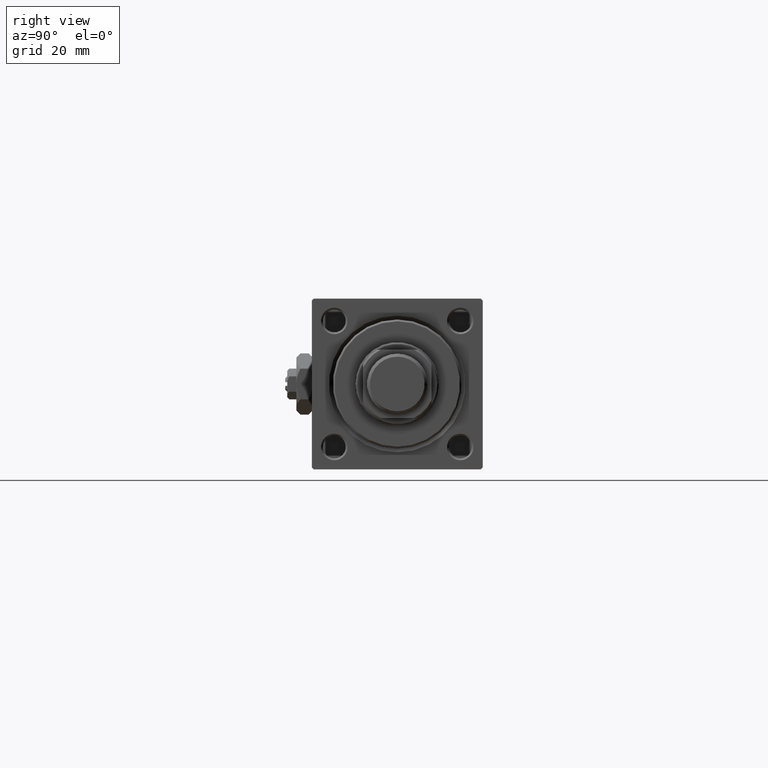
[diagram: clean part render]
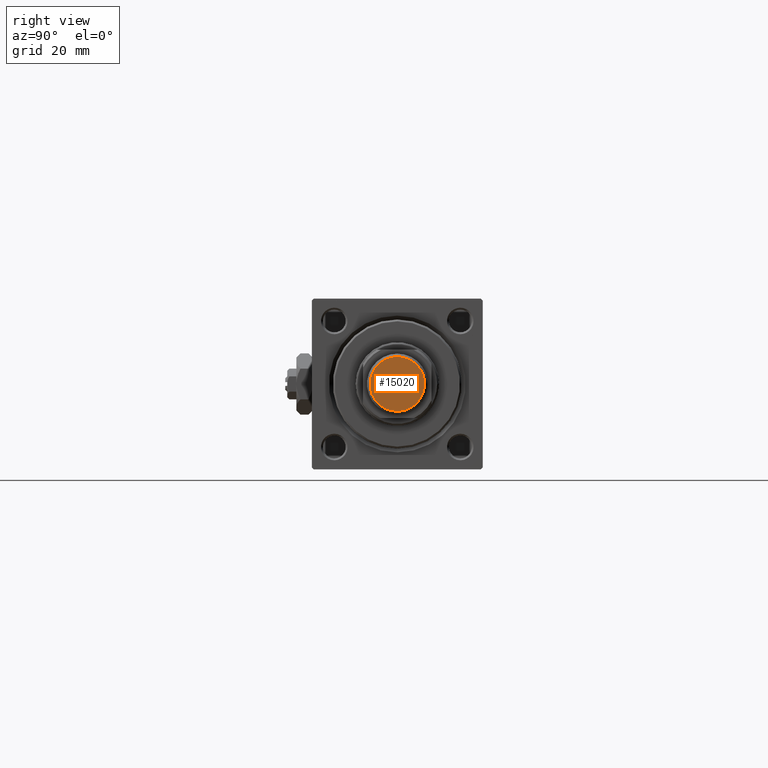
[diagram: same view with one face highlighted and labeled with its STEP entity id]
A machine part, right view. The second image highlights one B-rep face of the part: STEP entity #15020.
In plain terms, the highlighted planar face has unit normal (-1, 0, 0).
Its self-contained STEP definition (entity closure, byte-faithful):
#67 = ORIENTED_EDGE ( 'NONE', *, *, #13812, .T. ) ;
#849 = DIRECTION ( 'NONE',  ( -0.000000000000000000, -0.000000000000000000, -1.000000000000000000 ) ) ;
#1485 = VERTEX_POINT ( 'NONE', #31033 ) ;
#2879 = FACE_OUTER_BOUND ( 'NONE', #48197, .T. ) ;
#6830 = DIRECTION ( 'NONE',  ( -0.000000000000000000, -0.000000000000000000, -1.000000000000000000 ) ) ;
#6980 = AXIS2_PLACEMENT_3D ( 'NONE', #47063, #14062, #30274 ) ;
#12088 = CARTESIAN_POINT ( 'NONE',  ( 0.000000000000000000, 0.000000000000000000, 0.000000000000000000 ) ) ;
#12356 = DIRECTION ( 'NONE',  ( 1.000000000000000000, 0.000000000000000000, 0.000000000000000000 ) ) ;
#12960 = EDGE_CURVE ( 'NONE', #45633, #1485, #35936, .T. ) ;
#13812 = EDGE_CURVE ( 'NONE', #1485, #45633, #52018, .T. ) ;
#14062 = DIRECTION ( 'NONE',  ( 0.000000000000000000, 0.000000000000000000, 1.000000000000000000 ) ) ;
#15020 = ADVANCED_FACE ( 'NONE', ( #2879 ), #15111, .F. ) ;
#15111 = PLANE ( 'NONE',  #6980 ) ;
#16300 = AXIS2_PLACEMENT_3D ( 'NONE', #37579, #849, #25323 ) ;
#24091 = ORIENTED_EDGE ( 'NONE', *, *, #12960, .T. ) ;
#24825 = CARTESIAN_POINT ( 'NONE',  ( 7.199999999999987743, 0.000000000000000000, 0.000000000000000000 ) ) ;
#25323 = DIRECTION ( 'NONE',  ( 1.000000000000000000, 0.000000000000000000, 0.000000000000000000 ) ) ;
#29970 = AXIS2_PLACEMENT_3D ( 'NONE', #12088, #6830, #12356 ) ;
#30274 = DIRECTION ( 'NONE',  ( 1.000000000000000000, 0.000000000000000000, -0.000000000000000000 ) ) ;
#31033 = CARTESIAN_POINT ( 'NONE',  ( -7.199999999999987743, 9.307315673519877571E-16, 0.000000000000000000 ) ) ;
#35936 = CIRCLE ( 'NONE', #29970, 7.199999999999987743 ) ;
#37579 = CARTESIAN_POINT ( 'NONE',  ( 0.000000000000000000, 0.000000000000000000, 0.000000000000000000 ) ) ;
#45633 = VERTEX_POINT ( 'NONE', #24825 ) ;
#47063 = CARTESIAN_POINT ( 'NONE',  ( 0.000000000000000000, 0.000000000000000000, 0.000000000000000000 ) ) ;
#48197 = EDGE_LOOP ( 'NONE', ( #24091, #67 ) ) ;
#52018 = CIRCLE ( 'NONE', #16300, 7.199999999999987743 ) ;